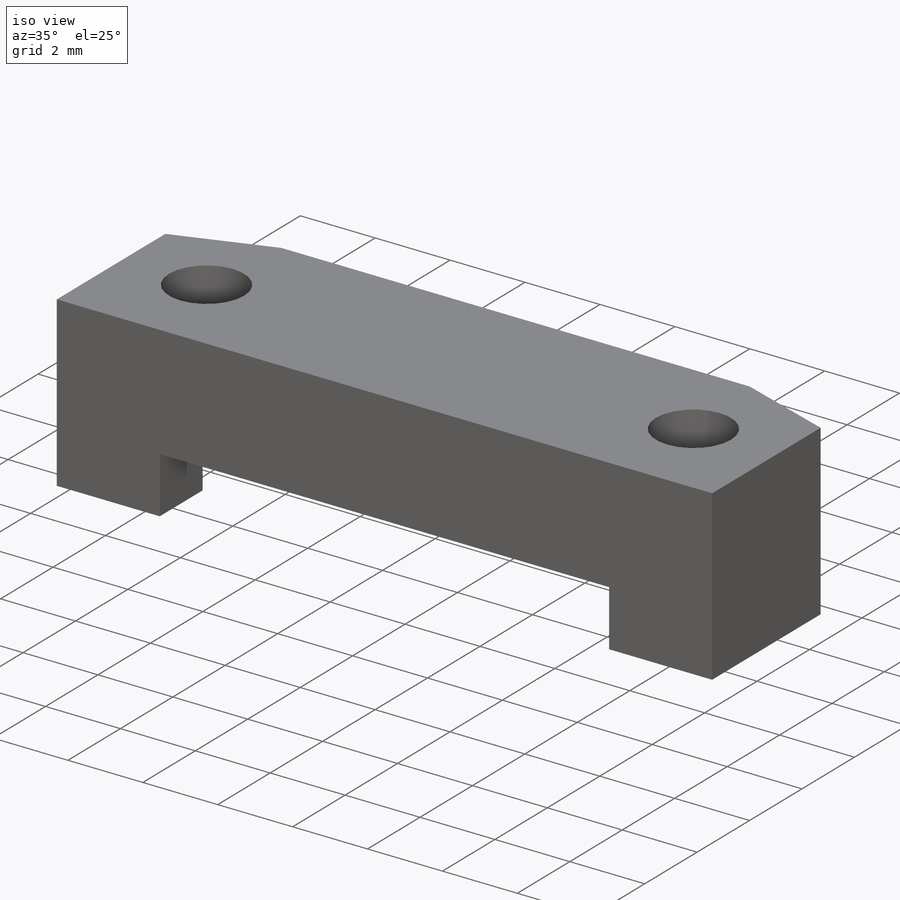
[diagram: iso view]
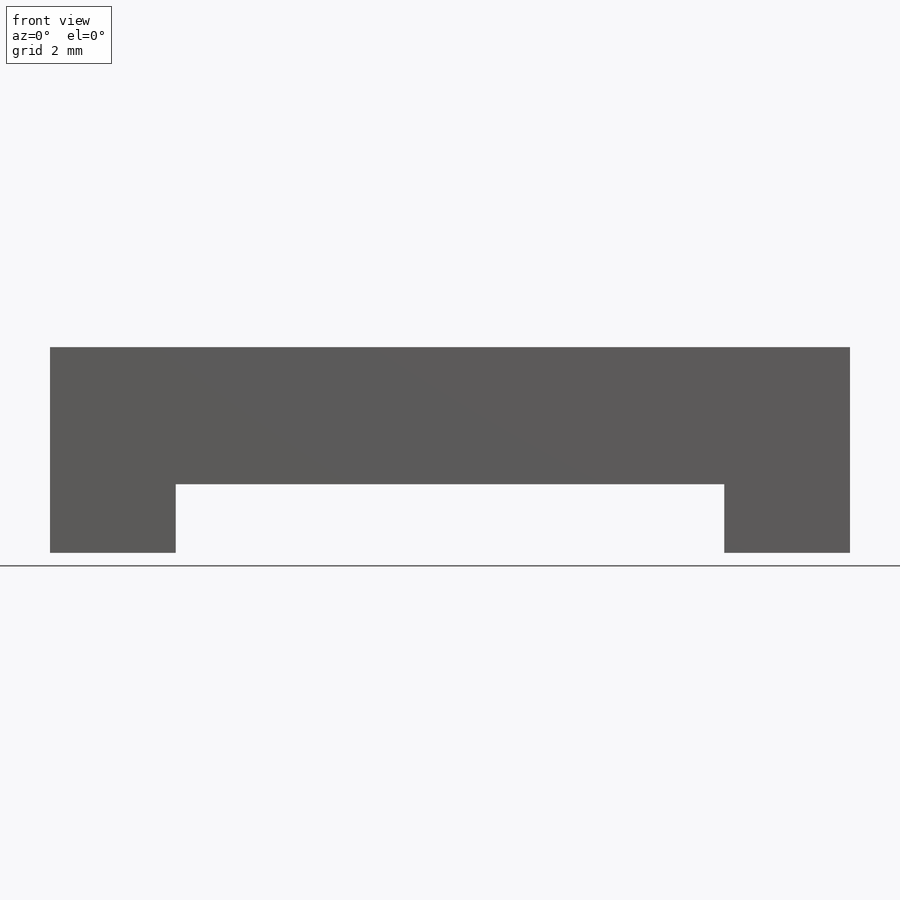
[diagram: front view]
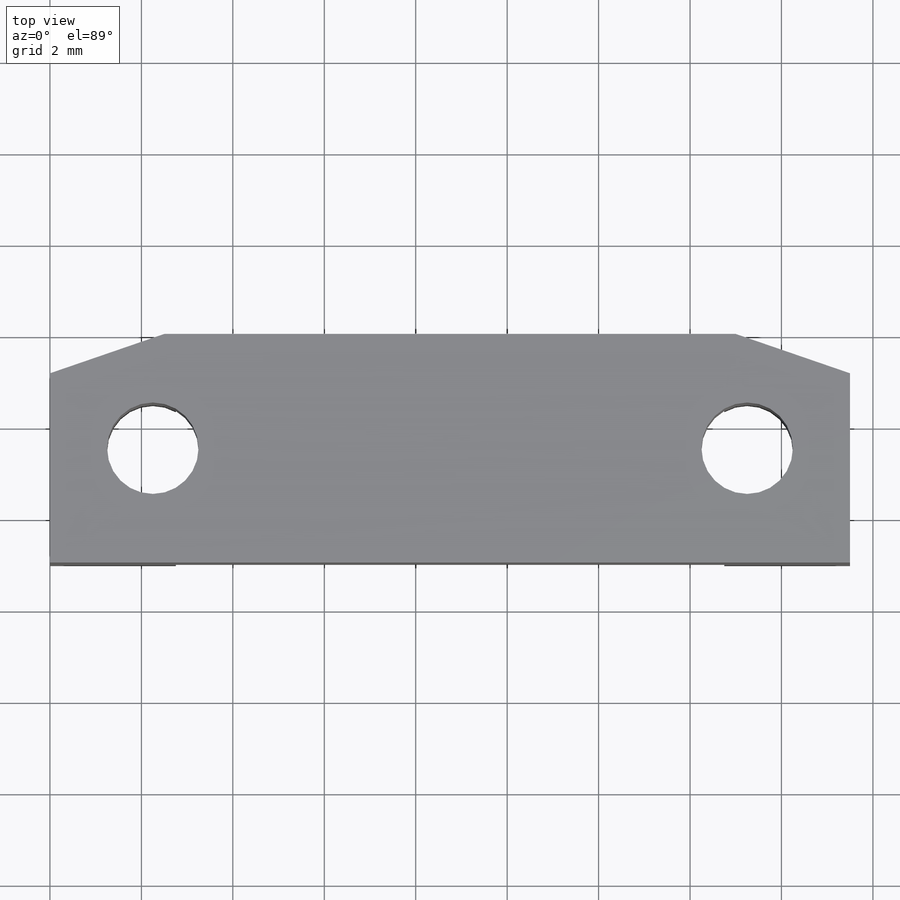
[diagram: top view]
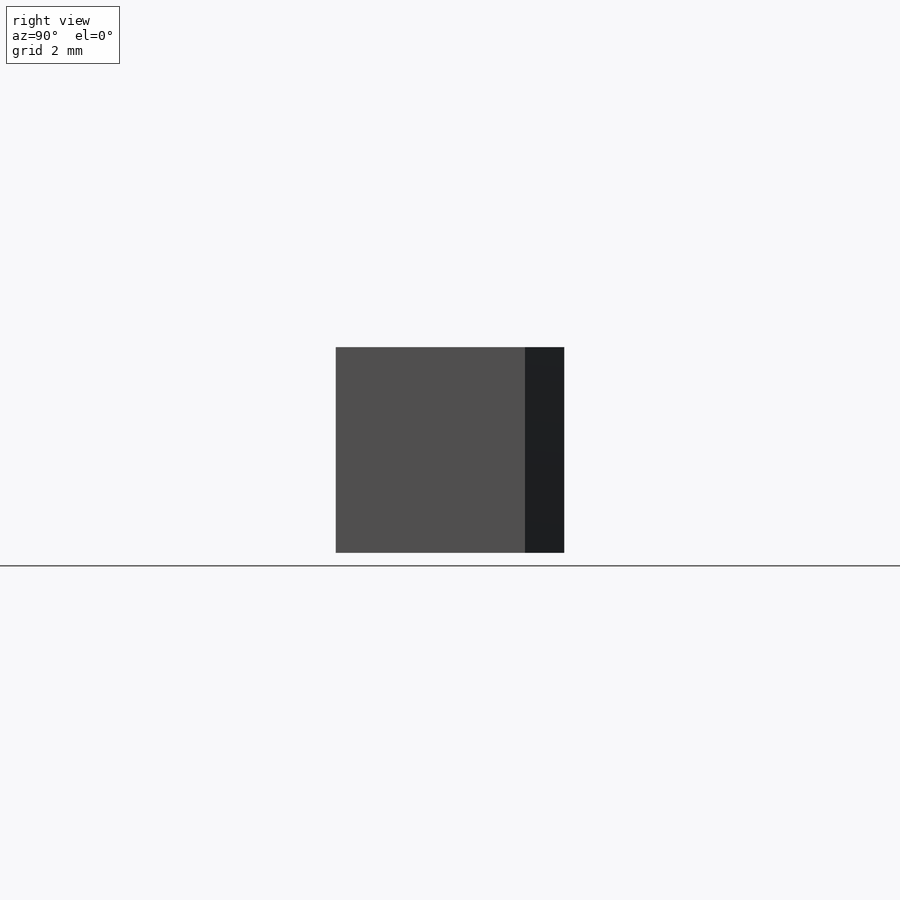
[diagram: right view]
SOLIDWORKS PART (.sldprt)
format: sldprt  version: not decoded by parser v0  size: 349,184 bytes
history: native  units: mm
features: sketch x4, plane x3, cut_extrude x3, chamfer x2, material x1, extrude x1 (+13 scaffold rows collapsed)
feature tree (27):
  scaffold x13  (default folders/planes/origin — collapsed)
  material  "2024-T3"
  plane  "Спереди"
  plane  "Сверху"
  plane  "Справа"
  sketch  "Эскиз1"  dims[D1=17.5mm D2=4.5mm]
  extrude  "Бобышка-Вытянуть1"  Depth=5mm
  sketch  "Эскиз2"  dims[c1.D1=~2.641132mm c1.D2=~2.641132mm c1.D4=2.0mm c2.D1=13.0mm c2.D2=2.5mm c2.D3=2.5mm]
  cut_extrude  "Вырез-Вытянуть1"  [1 undecoded]
  sketch  "Эскиз3"  dims[D1=12.0mm D2=1.5mm]
  cut_extrude  "Вырез-Вытянуть3"  [1 undecoded]
  chamfer  "Фаска1"  Distance=1mm Angle=70deg
  sketch  "Эскиз4"  dims[D1=3.6mm]
  cut_extrude  "Вырез-Вытянуть4"  Depth=1mm
  chamfer  "Фаска2"  Distance=2.5mm Angle=19deg
decode coverage: 8 of 10 modeling features carry decoded parameters
note: ~ marks probable driven/reference dimensions
note: 2 parameter values undecoded
note: suppression state not decoded; provenance and decode notes live in map.json
